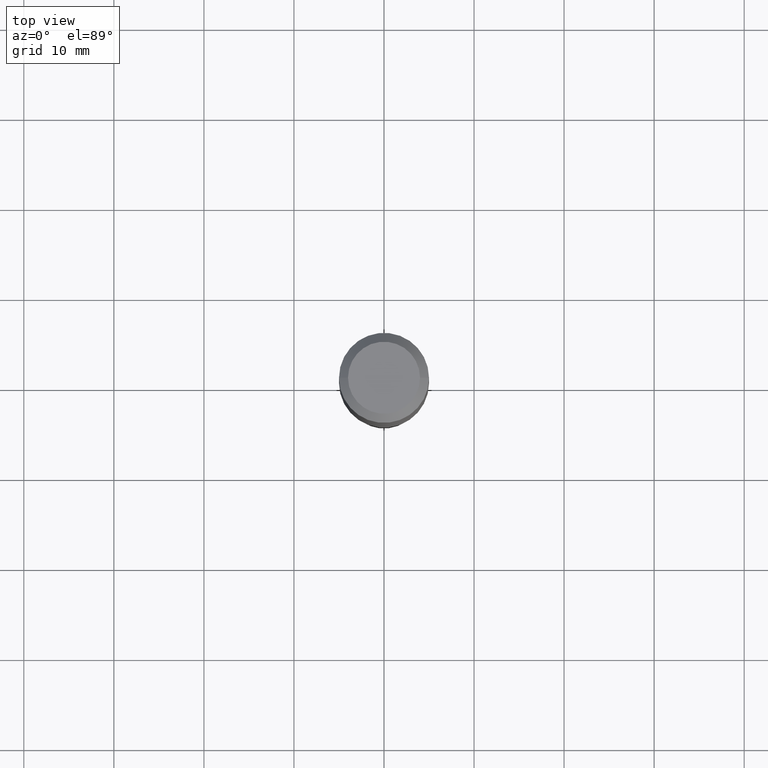
[diagram: clean part render]
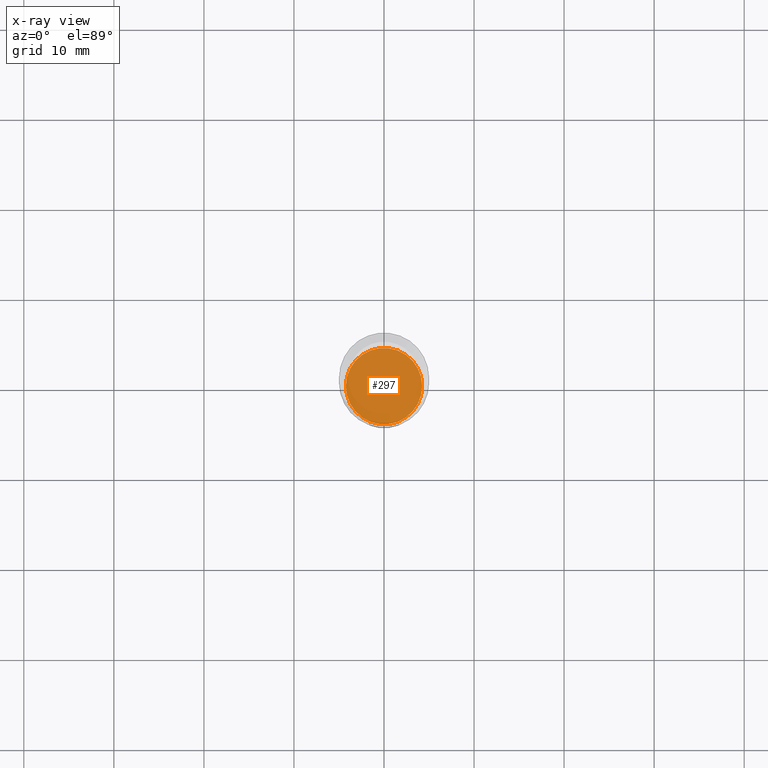
[diagram: x-ray — body ghosted, one internal face saturated and labeled with its STEP entity id]
A machine part, top view, then the same camera in x-ray: the body is ghosted and one INTERNAL B-rep face — a face not visible from any outside direction — is saturated and labeled: STEP entity #297.
In plain terms, the highlighted planar face has unit normal (-0, 0, 1).
Its self-contained STEP definition (entity closure, byte-faithful):
#16 = ORIENTED_EDGE ( 'NONE', *, *, #184, .F. ) ;
#64 = CIRCLE ( 'NONE', #114, 0.1668000000000000038 ) ;
#79 = AXIS2_PLACEMENT_3D ( 'NONE', #217, #493, #293 ) ;
#87 = AXIS2_PLACEMENT_3D ( 'NONE', #226, #495, #340 ) ;
#91 = DIRECTION ( 'NONE',  ( -2.445468806185136597E-29, 3.491481338843145583E-15, 1.000000000000000000 ) ) ;
#114 = AXIS2_PLACEMENT_3D ( 'NONE', #291, #91, #251 ) ;
#132 = CIRCLE ( 'NONE', #79, 0.1668000000000000038 ) ;
#182 = ORIENTED_EDGE ( 'NONE', *, *, #243, .F. ) ;
#184 = EDGE_CURVE ( 'NONE', #208, #220, #64, .T. ) ;
#187 = FACE_OUTER_BOUND ( 'NONE', #334, .T. ) ;
#208 = VERTEX_POINT ( 'NONE', #260 ) ;
#217 = CARTESIAN_POINT ( 'NONE',  ( 5.207870369651867024E-29, -7.435458659200361456E-15, -2.129599999999999937 ) ) ;
#220 = VERTEX_POINT ( 'NONE', #369 ) ;
#226 = CARTESIAN_POINT ( 'NONE',  ( 7.643427062710621878E-29, -3.947602851462104750E-15, -2.129599999999999937 ) ) ;
#243 = EDGE_CURVE ( 'NONE', #220, #208, #132, .T. ) ;
#251 = DIRECTION ( 'NONE',  ( 1.000000000000000000, -6.982962677686265922E-15, 0.000000000000000000 ) ) ;
#260 = CARTESIAN_POINT ( 'NONE',  ( -0.1668000000000000038, -6.247624148778405090E-15, -2.129599999999999937 ) ) ;
#291 = CARTESIAN_POINT ( 'NONE',  ( 5.207870369651867024E-29, -7.435458659200361456E-15, -2.129599999999999937 ) ) ;
#293 = DIRECTION ( 'NONE',  ( 1.000000000000000000, -6.982962677686265922E-15, 0.000000000000000000 ) ) ;
#297 = ADVANCED_FACE ( 'NONE', ( #187 ), #502, .F. ) ;
#334 = EDGE_LOOP ( 'NONE', ( #182, #16 ) ) ;
#340 = DIRECTION ( 'NONE',  ( 1.000000000000000000, -6.982962677686265922E-15, 4.876176775795935793E-29 ) ) ;
#369 = CARTESIAN_POINT ( 'NONE',  ( 0.1668000000000000038, -8.600216833838431236E-15, -2.129599999999999937 ) ) ;
#493 = DIRECTION ( 'NONE',  ( -2.445468806185136597E-29, 3.491481338843145583E-15, 1.000000000000000000 ) ) ;
#495 = DIRECTION ( 'NONE',  ( -2.438088387897960049E-29, 3.491481338843145188E-15, 1.000000000000000000 ) ) ;
#502 = PLANE ( 'NONE',  #87 ) ;